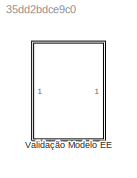
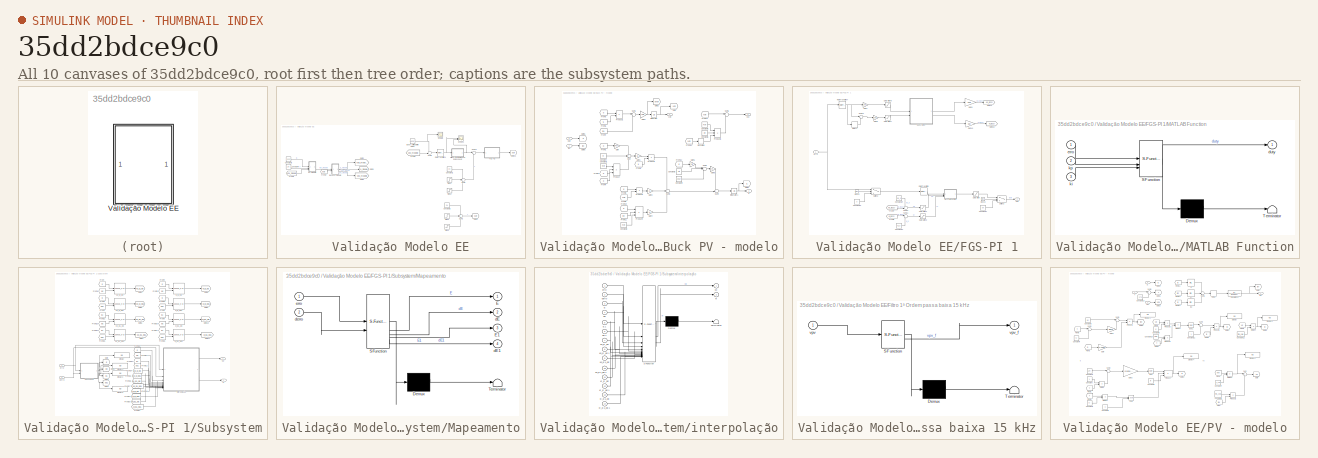
[diagram: thumbnail index - all 10 canvases of the model, root first then tree order]
MODEL slx_35dd2bdce9c0
KIND model
CONFIG AbsTol = auto
CONFIG EnableMultiTasking = off
CONFIG FixedStep = 1/150000
CONFIG MaxStep = auto
CONFIG MinStep = auto
CONFIG RelTol = 1e-3
CONFIG SampleTimeConstraint = Unconstrained
CONFIG SolverName = FixedStepAuto
CONFIG StartTime = 0.0
CONFIG StopTime = 0.3
BLOCK [SubSystem] Validação Modelo EE
BLOCK [Reference] Validação Modelo EE/Band-Limited White Noise  REF=simulink/Sources/Band-Limited
White Noise
  Commented = on
  SourceBlock = simulink/Sources/Band-Limited\nWhite Noise
  SourceType = Band-Limited White Noise.
BLOCK [SubSystem] Validação Modelo EE/Buck PV - modelo
BLOCK [Constant] Validação Modelo EE/Buck PV - modelo/Constant
  Value = Rl
BLOCK [Constant] Validação Modelo EE/Buck PV - modelo/Constant1
  Value = Rcin
BLOCK [Constant] Validação Modelo EE/Buck PV - modelo/Constant2
  Value = Rcin
BLOCK [Constant] Validação Modelo EE/Buck PV - modelo/Constant3
  Value = Vto
BLOCK [Constant] Validação Modelo EE/Buck PV - modelo/Constant4
  Value = Vbat
BLOCK [Constant] Validação Modelo EE/Buck PV - modelo/Constant5
  Value = Rcin
BLOCK [Constant] Validação Modelo EE/Buck PV - modelo/Constant6
  Value = Cin
BLOCK [Derivative] Validação Modelo EE/Buck PV - modelo/Derivative
BLOCK [From] Validação Modelo EE/Buck PV - modelo/From1
  GotoTag = d
BLOCK [From] Validação Modelo EE/Buck PV - modelo/From10
  GotoTag = d
BLOCK [From] Validação Modelo EE/Buck PV - modelo/From11
  GotoTag = ipv
BLOCK [From] Validação Modelo EE/Buck PV - modelo/From12
  GotoTag = d
BLOCK [From] Validação Modelo EE/Buck PV - modelo/From13
  GotoTag = vcin
BLOCK [From] Validação Modelo EE/Buck PV - modelo/From14
  GotoTag = vcin
BLOCK [From] Validação Modelo EE/Buck PV - modelo/From2
  GotoTag = d
BLOCK [From] Validação Modelo EE/Buck PV - modelo/From3
  GotoTag = d
BLOCK [From] Validação Modelo EE/Buck PV - modelo/From4
  GotoTag = d
BLOCK [From] Validação Modelo EE/Buck PV - modelo/From5
  GotoTag = iL
BLOCK [From] Validação Modelo EE/Buck PV - modelo/From6
  GotoTag = iL
BLOCK [From] Validação Modelo EE/Buck PV - modelo/From7
  GotoTag = ipv
BLOCK [From] Validação Modelo EE/Buck PV - modelo/From8
  GotoTag = d
BLOCK [From] Validação Modelo EE/Buck PV - modelo/From9
  GotoTag = vcin
BLOCK [Gain] Validação Modelo EE/Buck PV - modelo/Gain
  Gain = Ron
BLOCK [Gain] Validação Modelo EE/Buck PV - modelo/Gain1
  Gain = -1/L
BLOCK [Gain] Validação Modelo EE/Buck PV - modelo/Gain2
  Gain = 1/Cin
BLOCK [Gain] Validação Modelo EE/Buck PV - modelo/Gain3
  Gain = 1/L
BLOCK [Gain] Validação Modelo EE/Buck PV - modelo/Gain4
  Gain = 1/L
BLOCK [Gain] Validação Modelo EE/Buck PV - modelo/Gain5
  Gain = Vto
BLOCK [Gain] Validação Modelo EE/Buck PV - modelo/Gain6
  Gain = 1/L
BLOCK [Goto] Validação Modelo EE/Buck PV - modelo/Goto
  GotoTag = vcin
BLOCK [Goto] Validação Modelo EE/Buck PV - modelo/Goto1
  GotoTag = iL
BLOCK [Goto] Validação Modelo EE/Buck PV - modelo/Goto2
  GotoTag = dvcin
BLOCK [Goto] Validação Modelo EE/Buck PV - modelo/Goto5
  GotoTag = d
BLOCK [Goto] Validação Modelo EE/Buck PV - modelo/Goto8
  GotoTag = ipv
BLOCK [Integrator] Validação Modelo EE/Buck PV - modelo/Integrator
BLOCK [Integrator] Validação Modelo EE/Buck PV - modelo/Integrator1
BLOCK [Product] Validação Modelo EE/Buck PV - modelo/Product
  Inputs = 3
BLOCK [Product] Validação Modelo EE/Buck PV - modelo/Product1
BLOCK [Product] Validação Modelo EE/Buck PV - modelo/Product2
BLOCK [Product] Validação Modelo EE/Buck PV - modelo/Product3
BLOCK [Product] Validação Modelo EE/Buck PV - modelo/Product4
  Inputs = 3
BLOCK [Product] Validação Modelo EE/Buck PV - modelo/Product5
  Inputs = 3
BLOCK [Sum] Validação Modelo EE/Buck PV - modelo/Sum
  Inputs = ++-
BLOCK [Sum] Validação Modelo EE/Buck PV - modelo/Sum1
  Inputs = |-+
BLOCK [Sum] Validação Modelo EE/Buck PV - modelo/Sum2
  Inputs = +--
BLOCK [Sum] Validação Modelo EE/Buck PV - modelo/Sum3
  Inputs = +++
BLOCK [Sum] Validação Modelo EE/Buck PV - modelo/Sum4
  Inputs = ++|
BLOCK [Sum] Validação Modelo EE/Buck PV - modelo/Sum5
  Inputs = |++
BLOCK [Inport] Validação Modelo EE/Buck PV - modelo/duty
  Port = 2
BLOCK [Outport] Validação Modelo EE/Buck PV - modelo/iL
  Port = 2
BLOCK [Inport] Validação Modelo EE/Buck PV - modelo/ipv
BLOCK [Outport] Validação Modelo EE/Buck PV - modelo/vcin
BLOCK [Outport] Validação Modelo EE/Buck PV - modelo/vpv
  Port = 3
BLOCK [Constant] Validação Modelo EE/Constant1
  Commented = on
  Value = 23
BLOCK [Constant] Validação Modelo EE/Constant2
  Value = 0.4
BLOCK [Constant] Validação Modelo EE/Constant3
  Value = 1000
BLOCK [Constant] Validação Modelo EE/Constant4
  Value = 25
BLOCK [SubSystem] Validação Modelo EE/FGS-PI 1
  Commented = on
BLOCK [Clock] Validação Modelo EE/FGS-PI 1/Clock2
BLOCK [Clock] Validação Modelo EE/FGS-PI 1/Clock3
BLOCK [Constant] Validação Modelo EE/FGS-PI 1/Constant10
  Value = 0
BLOCK [Constant] Validação Modelo EE/FGS-PI 1/Constant11
  Value = 0.4
BLOCK [Constant] Validação Modelo EE/FGS-PI 1/Constant13
  Value = ki_0
BLOCK [Constant] Validação Modelo EE/FGS-PI 1/Constant14
  Value = kp_0
BLOCK [Delay] Validação Modelo EE/FGS-PI 1/Delay1
  DelayLength = 1
  InputPortMap = u0
BLOCK [From] Validação Modelo EE/FGS-PI 1/From7
  GotoTag = kp_fuzzy
BLOCK [From] Validação Modelo EE/FGS-PI 1/From8
  GotoTag = ki_fuzzy
BLOCK [Gain] Validação Modelo EE/FGS-PI 1/Gain10
  Gain = kki
BLOCK [Gain] Validação Modelo EE/FGS-PI 1/Gain7
  Gain = kE
BLOCK [Gain] Validação Modelo EE/FGS-PI 1/Gain8
  Gain = kdE
BLOCK [Gain] Validação Modelo EE/FGS-PI 1/Gain9
  Gain = kkp
BLOCK [Goto] Validação Modelo EE/FGS-PI 1/Goto13
  GotoTag = kp_fuzzy
BLOCK [Goto] Validação Modelo EE/FGS-PI 1/Goto15
  GotoTag = ki_fuzzy
BLOCK [SubSystem] Validação Modelo EE/FGS-PI 1/MATLAB Function
  ErrorFcn = Stateflow.Translate.translate
  PermitHierarchicalResolution = ExplicitOnly
  SFBlockType = MATLAB Function
  TreatAsAtomicUnit = on
BLOCK [Demux] Validação Modelo EE/FGS-PI 1/MATLAB Function/ Demux 
  Outputs = 1
BLOCK [S-Function] Validação Modelo EE/FGS-PI 1/MATLAB Function/ SFunction 
  EnableBusSupport = on
  FunctionName = sf_sfun
  PortCounts = [3 2]
  SFcnIsStateOwnerBlock = off
  SFunctionDeploymentMode = off
  Tag = Stateflow S-Function 16
BLOCK [Terminator] Validação Modelo EE/FGS-PI 1/MATLAB Function/ Terminator 
BLOCK [Outport] Validação Modelo EE/FGS-PI 1/MATLAB Function/duty
BLOCK [Inport] Validação Modelo EE/FGS-PI 1/MATLAB Function/erro
BLOCK [Inport] Validação Modelo EE/FGS-PI 1/MATLAB Function/ki
  Port = 3
BLOCK [Inport] Validação Modelo EE/FGS-PI 1/MATLAB Function/kp
  Port = 2
BLOCK [RateTransition] Validação Modelo EE/FGS-PI 1/Rate Transition
  OutPortSampleTime = 1/150000
BLOCK [RateTransition] Validação Modelo EE/FGS-PI 1/Rate Transition7
  OutPortSampleTime = 200e-6
BLOCK [Saturate] Validação Modelo EE/FGS-PI 1/Saturation
  LowerLimit = 0
  UpperLimit = 1
BLOCK [Saturate] Validação Modelo EE/FGS-PI 1/Saturation1
  LowerLimit = 0
  UpperLimit = 10
BLOCK [Saturate] Validação Modelo EE/FGS-PI 1/Saturation2
  LowerLimit = 0
  UpperLimit = 10
BLOCK [Saturate] Validação Modelo EE/FGS-PI 1/Saturation7
  LowerLimit = -1
  UpperLimit = 1
BLOCK [Saturate] Validação Modelo EE/FGS-PI 1/Saturation8
  LowerLimit = -1
  UpperLimit = 1
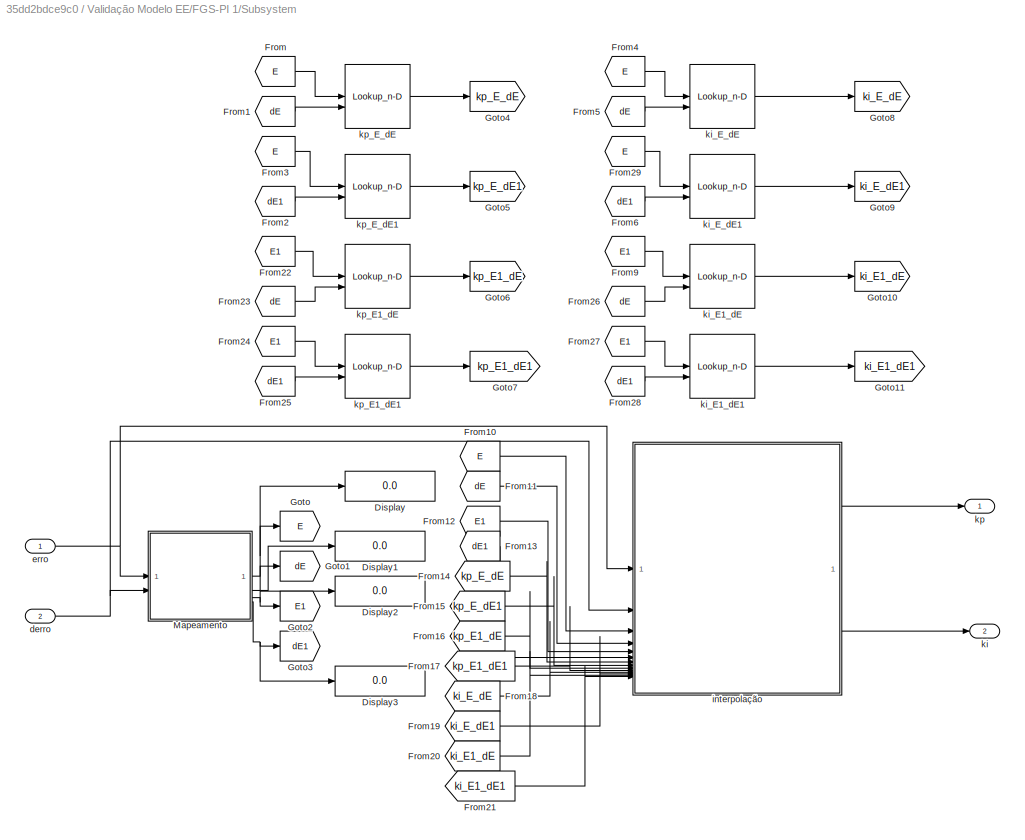
BLOCK [SubSystem] Validação Modelo EE/FGS-PI 1/Subsystem
BLOCK [Display] Validação Modelo EE/FGS-PI 1/Subsystem/Display
  Decimation = 1
BLOCK [Display] Validação Modelo EE/FGS-PI 1/Subsystem/Display1
  Decimation = 1
BLOCK [Display] Validação Modelo EE/FGS-PI 1/Subsystem/Display2
  Decimation = 1
BLOCK [Display] Validação Modelo EE/FGS-PI 1/Subsystem/Display3
  Decimation = 1
BLOCK [From] Validação Modelo EE/FGS-PI 1/Subsystem/From
  GotoTag = E
BLOCK [From] Validação Modelo EE/FGS-PI 1/Subsystem/From1
  GotoTag = dE
BLOCK [From] Validação Modelo EE/FGS-PI 1/Subsystem/From10
  GotoTag = E
BLOCK [From] Validação Modelo EE/FGS-PI 1/Subsystem/From11
  GotoTag = dE
BLOCK [From] Validação Modelo EE/FGS-PI 1/Subsystem/From12
  GotoTag = E1
BLOCK [From] Validação Modelo EE/FGS-PI 1/Subsystem/From13
  GotoTag = dE1
BLOCK [From] Validação Modelo EE/FGS-PI 1/Subsystem/From14
  GotoTag = kp_E_dE
BLOCK [From] Validação Modelo EE/FGS-PI 1/Subsystem/From15
  GotoTag = kp_E_dE1
BLOCK [From] Validação Modelo EE/FGS-PI 1/Subsystem/From16
  GotoTag = kp_E1_dE
BLOCK [From] Validação Modelo EE/FGS-PI 1/Subsystem/From17
  GotoTag = kp_E1_dE1
BLOCK [From] Validação Modelo EE/FGS-PI 1/Subsystem/From18
  GotoTag = ki_E_dE
BLOCK [From] Validação Modelo EE/FGS-PI 1/Subsystem/From19
  GotoTag = ki_E_dE1
BLOCK [From] Validação Modelo EE/FGS-PI 1/Subsystem/From2
  GotoTag = dE1
BLOCK [From] Validação Modelo EE/FGS-PI 1/Subsystem/From20
  GotoTag = ki_E1_dE
BLOCK [From] Validação Modelo EE/FGS-PI 1/Subsystem/From21
  GotoTag = ki_E1_dE1
BLOCK [From] Validação Modelo EE/FGS-PI 1/Subsystem/From22
  GotoTag = E1
BLOCK [From] Validação Modelo EE/FGS-PI 1/Subsystem/From23
  GotoTag = dE
BLOCK [From] Validação Modelo EE/FGS-PI 1/Subsystem/From24
  GotoTag = E1
BLOCK [From] Validação Modelo EE/FGS-PI 1/Subsystem/From25
  GotoTag = dE1
BLOCK [From] Validação Modelo EE/FGS-PI 1/Subsystem/From26
  GotoTag = dE
BLOCK [From] Validação Modelo EE/FGS-PI 1/Subsystem/From27
  GotoTag = E1
BLOCK [From] Validação Modelo EE/FGS-PI 1/Subsystem/From28
  GotoTag = dE1
BLOCK [From] Validação Modelo EE/FGS-PI 1/Subsystem/From29
  GotoTag = E
BLOCK [From] Validação Modelo EE/FGS-PI 1/Subsystem/From3
  GotoTag = E
BLOCK [From] Validação Modelo EE/FGS-PI 1/Subsystem/From4
  GotoTag = E
BLOCK [From] Validação Modelo EE/FGS-PI 1/Subsystem/From5
  GotoTag = dE
BLOCK [From] Validação Modelo EE/FGS-PI 1/Subsystem/From6
  GotoTag = dE1
BLOCK [From] Validação Modelo EE/FGS-PI 1/Subsystem/From9
  GotoTag = E1
BLOCK [Goto] Validação Modelo EE/FGS-PI 1/Subsystem/Goto
  GotoTag = E
BLOCK [Goto] Validação Modelo EE/FGS-PI 1/Subsystem/Goto1
  GotoTag = dE
BLOCK [Goto] Validação Modelo EE/FGS-PI 1/Subsystem/Goto10
  GotoTag = ki_E1_dE
BLOCK [Goto] Validação Modelo EE/FGS-PI 1/Subsystem/Goto11
  GotoTag = ki_E1_dE1
BLOCK [Goto] Validação Modelo EE/FGS-PI 1/Subsystem/Goto2
  GotoTag = E1
BLOCK [Goto] Validação Modelo EE/FGS-PI 1/Subsystem/Goto3
  GotoTag = dE1
BLOCK [Goto] Validação Modelo EE/FGS-PI 1/Subsystem/Goto4
  GotoTag = kp_E_dE
BLOCK [Goto] Validação Modelo EE/FGS-PI 1/Subsystem/Goto5
  GotoTag = kp_E_dE1
BLOCK [Goto] Validação Modelo EE/FGS-PI 1/Subsystem/Goto6
  GotoTag = kp_E1_dE
BLOCK [Goto] Validação Modelo EE/FGS-PI 1/Subsystem/Goto7
  GotoTag = kp_E1_dE1
BLOCK [Goto] Validação Modelo EE/FGS-PI 1/Subsystem/Goto8
  GotoTag = ki_E_dE
BLOCK [Goto] Validação Modelo EE/FGS-PI 1/Subsystem/Goto9
  GotoTag = ki_E_dE1
BLOCK [SubSystem] Validação Modelo EE/FGS-PI 1/Subsystem/Mapeamento
  ErrorFcn = Stateflow.Translate.translate
  PermitHierarchicalResolution = ExplicitOnly
  SFBlockType = MATLAB Function
  TreatAsAtomicUnit = on
BLOCK [Demux] Validação Modelo EE/FGS-PI 1/Subsystem/Mapeamento/ Demux 
  Outputs = 1
BLOCK [S-Function] Validação Modelo EE/FGS-PI 1/Subsystem/Mapeamento/ SFunction 
  EnableBusSupport = on
  FunctionName = sf_sfun
  PortCounts = [2 5]
  SFcnIsStateOwnerBlock = off
  SFunctionDeploymentMode = off
  Tag = Stateflow S-Function 1
BLOCK [Terminator] Validação Modelo EE/FGS-PI 1/Subsystem/Mapeamento/ Terminator 
BLOCK [Outport] Validação Modelo EE/FGS-PI 1/Subsystem/Mapeamento/E
BLOCK [Outport] Validação Modelo EE/FGS-PI 1/Subsystem/Mapeamento/E1
  Port = 3
BLOCK [Outport] Validação Modelo EE/FGS-PI 1/Subsystem/Mapeamento/dE
  Port = 2
BLOCK [Outport] Validação Modelo EE/FGS-PI 1/Subsystem/Mapeamento/dE1
  Port = 4
BLOCK [Inport] Validação Modelo EE/FGS-PI 1/Subsystem/Mapeamento/derro
  Port = 2
BLOCK [Inport] Validação Modelo EE/FGS-PI 1/Subsystem/Mapeamento/erro
BLOCK [Inport] Validação Modelo EE/FGS-PI 1/Subsystem/derro
  Port = 2
BLOCK [Inport] Validação Modelo EE/FGS-PI 1/Subsystem/erro
BLOCK [SubSystem] Validação Modelo EE/FGS-PI 1/Subsystem/interpolação
  ErrorFcn = Stateflow.Translate.translate
  PermitHierarchicalResolution = ExplicitOnly
  SFBlockType = MATLAB Function
  TreatAsAtomicUnit = on
BLOCK [Demux] Validação Modelo EE/FGS-PI 1/Subsystem/interpolação/ Demux 
  Outputs = 1
BLOCK [S-Function] Validação Modelo EE/FGS-PI 1/Subsystem/interpolação/ SFunction 
  EnableBusSupport = on
  FunctionName = sf_sfun
  PortCounts = [14 3]
  SFcnIsStateOwnerBlock = off
  SFunctionDeploymentMode = off
  Tag = Stateflow S-Function 2
BLOCK [Terminator] Validação Modelo EE/FGS-PI 1/Subsystem/interpolação/ Terminator 
BLOCK [Inport] Validação Modelo EE/FGS-PI 1/Subsystem/interpolação/E
  Port = 3
BLOCK [Inport] Validação Modelo EE/FGS-PI 1/Subsystem/interpolação/E1
  Port = 5
BLOCK [Inport] Validação Modelo EE/FGS-PI 1/Subsystem/interpolação/dE
  Port = 4
BLOCK [Inport] Validação Modelo EE/FGS-PI 1/Subsystem/interpolação/dE1
  Port = 6
BLOCK [Inport] Validação Modelo EE/FGS-PI 1/Subsystem/interpolação/derro
  Port = 2
BLOCK [Inport] Validação Modelo EE/FGS-PI 1/Subsystem/interpolação/erro
BLOCK [Outport] Validação Modelo EE/FGS-PI 1/Subsystem/interpolação/ki
  Port = 2
BLOCK [Inport] Validação Modelo EE/FGS-PI 1/Subsystem/interpolação/ki_E1_dE
  Port = 13
BLOCK [Inport] Validação Modelo EE/FGS-PI 1/Subsystem/interpolação/ki_E1_dE1
  Port = 14
BLOCK [Inport] Validação Modelo EE/FGS-PI 1/Subsystem/interpolação/ki_E_dE
  Port = 11
BLOCK [Inport] Validação Modelo EE/FGS-PI 1/Subsystem/interpolação/ki_E_dE1
  Port = 12
BLOCK [Outport] Validação Modelo EE/FGS-PI 1/Subsystem/interpolação/kp
BLOCK [Inport] Validação Modelo EE/FGS-PI 1/Subsystem/interpolação/kp_E1_dE
  Port = 9
BLOCK [Inport] Validação Modelo EE/FGS-PI 1/Subsystem/interpolação/kp_E1_dE1
  Port = 10
BLOCK [Inport] Validação Modelo EE/FGS-PI 1/Subsystem/interpolação/kp_E_dE
  Port = 7
BLOCK [Inport] Validação Modelo EE/FGS-PI 1/Subsystem/interpolação/kp_E_dE1
  Port = 8
BLOCK [Outport] Validação Modelo EE/FGS-PI 1/Subsystem/ki
  Port = 2
BLOCK [Lookup_n-D] Validação Modelo EE/FGS-PI 1/Subsystem/ki_E1_dE
  BreakpointsForDimension1 = [1:n_pontos]
  BreakpointsForDimension1FirstPoint = 10
  BreakpointsForDimension1Spacing = 12
  BreakpointsForDimension2 = [1:n_pontos]
  BreakpointsForDimension2FirstPoint = 10
  BreakpointsForDimension2Spacing = 12
  DiagnosticForOutOfRangeInput = Error
  IndexSearchMethod = Evenly spaced points
  InputPortMap = u0,u1
  InternalRulePriority = Speed
  InterpMethod = Flat
  LookupTableObject = ''
  RndMeth = Simplest
  Table = ki
BLOCK [Lookup_n-D] Validação Modelo EE/FGS-PI 1/Subsystem/ki_E1_dE1
  BreakpointsForDimension1 = [1:n_pontos]
  BreakpointsForDimension1FirstPoint = 10
  BreakpointsForDimension1Spacing = 12
  BreakpointsForDimension2 = [1:n_pontos]
  BreakpointsForDimension2FirstPoint = 10
  BreakpointsForDimension2Spacing = 12
  DiagnosticForOutOfRangeInput = Error
  IndexSearchMethod = Evenly spaced points
  InputPortMap = u0,u1
  InternalRulePriority = Speed
  InterpMethod = Flat
  LookupTableObject = ''
  RndMeth = Simplest
  Table = ki
BLOCK [Lookup_n-D] Validação Modelo EE/FGS-PI 1/Subsystem/ki_E_dE
  BreakpointsForDimension1 = [1:n_pontos]
  BreakpointsForDimension1FirstPoint = 10
  BreakpointsForDimension1Spacing = 12
  BreakpointsForDimension2 = [1:n_pontos]
  BreakpointsForDimension2FirstPoint = 10
  BreakpointsForDimension2Spacing = 12
  DiagnosticForOutOfRangeInput = Error
  IndexSearchMethod = Evenly spaced points
  InputPortMap = u0,u1
  InternalRulePriority = Speed
  InterpMethod = Flat
  LookupTableObject = ''
  RndMeth = Simplest
  Table = ki
BLOCK [Lookup_n-D] Validação Modelo EE/FGS-PI 1/Subsystem/ki_E_dE1
  BreakpointsForDimension1 = [1:n_pontos]
  BreakpointsForDimension1FirstPoint = 10
  BreakpointsForDimension1Spacing = 12
  BreakpointsForDimension2 = [1:n_pontos]
  BreakpointsForDimension2FirstPoint = 10
  BreakpointsForDimension2Spacing = 12
  DiagnosticForOutOfRangeInput = Error
  IndexSearchMethod = Evenly spaced points
  InputPortMap = u0,u1
  InternalRulePriority = Speed
  InterpMethod = Flat
  LookupTableObject = ''
  RndMeth = Simplest
  Table = ki
BLOCK [Outport] Validação Modelo EE/FGS-PI 1/Subsystem/kp
BLOCK [Lookup_n-D] Validação Modelo EE/FGS-PI 1/Subsystem/kp_E1_dE
  BreakpointsForDimension1 = [1:n_pontos]
  BreakpointsForDimension1FirstPoint = 10
  BreakpointsForDimension1Spacing = 12
  BreakpointsForDimension2 = [1:n_pontos]
  BreakpointsForDimension2FirstPoint = 10
  BreakpointsForDimension2Spacing = 12
  DiagnosticForOutOfRangeInput = Error
  IndexSearchMethod = Evenly spaced points
  InputPortMap = u0,u1
  InternalRulePriority = Speed
  InterpMethod = Flat
  LookupTableObject = ''
  RndMeth = Simplest
  Table = kp
BLOCK [Lookup_n-D] Validação Modelo EE/FGS-PI 1/Subsystem/kp_E1_dE1
  BreakpointsForDimension1 = [1:n_pontos]
  BreakpointsForDimension1FirstPoint = 10
  BreakpointsForDimension1Spacing = 12
  BreakpointsForDimension2 = [1:n_pontos]
  BreakpointsForDimension2FirstPoint = 10
  BreakpointsForDimension2Spacing = 12
  DiagnosticForOutOfRangeInput = Error
  IndexSearchMethod = Evenly spaced points
  InputPortMap = u0,u1
  InternalRulePriority = Speed
  InterpMethod = Flat
  LookupTableObject = ''
  RndMeth = Simplest
  Table = kp
BLOCK [Lookup_n-D] Validação Modelo EE/FGS-PI 1/Subsystem/kp_E_dE
  BreakpointsForDimension1 = [1:n_pontos]
  BreakpointsForDimension1FirstPoint = 10
  BreakpointsForDimension1Spacing = 12
  BreakpointsForDimension2 = [1:n_pontos]
  BreakpointsForDimension2FirstPoint = 10
  BreakpointsForDimension2Spacing = 12
  DiagnosticForOutOfRangeInput = Error
  IndexSearchMethod = Evenly spaced points
  InputPortMap = u0,u1
  InternalRulePriority = Speed
  InterpMethod = Flat
  LookupTableObject = ''
  RndMeth = Simplest
  Table = kp
BLOCK [Lookup_n-D] Validação Modelo EE/FGS-PI 1/Subsystem/kp_E_dE1
  BreakpointsForDimension1 = [1:n_pontos]
  BreakpointsForDimension1FirstPoint = 10
  BreakpointsForDimension1Spacing = 12
  BreakpointsForDimension2 = [1:n_pontos]
  BreakpointsForDimension2FirstPoint = 10
  BreakpointsForDimension2Spacing = 12
  DiagnosticForOutOfRangeInput = Error
  IndexSearchMethod = Evenly spaced points
  InputPortMap = u0,u1
  InternalRulePriority = Speed
  InterpMethod = Flat
  LookupTableObject = ''
  RndMeth = Simplest
  Table = kp
BLOCK [Sum] Validação Modelo EE/FGS-PI 1/Sum11
  Inputs = |++
BLOCK [Sum] Validação Modelo EE/FGS-PI 1/Sum12
  Inputs = ++|
BLOCK [Sum] Validação Modelo EE/FGS-PI 1/Sum13
  Inputs = |+-
BLOCK [Switch] Validação Modelo EE/FGS-PI 1/Switch2
  Criteria = u2 > Threshold
  InputSameDT = off
  SaturateOnIntegerOverflow = off
  Threshold = 0.01
BLOCK [Switch] Validação Modelo EE/FGS-PI 1/Switch3
  Criteria = u2 > Threshold
  InputSameDT = off
  SaturateOnIntegerOverflow = off
  Threshold = 0.01
BLOCK [Outport] Validação Modelo EE/FGS-PI 1/duty
BLOCK [Inport] Validação Modelo EE/FGS-PI 1/erro
BLOCK [SubSystem] Validação Modelo EE/Filtro 1ª Ordem passa baixa 15 kHz
  Commented = on
  ErrorFcn = Stateflow.Translate.translate
  PermitHierarchicalResolution = ExplicitOnly
  SFBlockType = MATLAB Function
  TreatAsAtomicUnit = on
BLOCK [Demux] Validação Modelo EE/Filtro 1ª Ordem passa baixa 15 kHz/ Demux 
  Outputs = 1
BLOCK [S-Function] Validação Modelo EE/Filtro 1ª Ordem passa baixa 15 kHz/ SFunction 
  EnableBusSupport = on
  FunctionName = sf_sfun
  PortCounts = [1 2]
  SFcnIsStateOwnerBlock = off
  SFunctionDeploymentMode = off
  Tag = Stateflow S-Function 3
BLOCK [Terminator] Validação Modelo EE/Filtro 1ª Ordem passa baixa 15 kHz/ Terminator 
BLOCK [Inport] Validação Modelo EE/Filtro 1ª Ordem passa baixa 15 kHz/vpv
BLOCK [Outport] Validação Modelo EE/Filtro 1ª Ordem passa baixa 15 kHz/vpv_f
BLOCK [From] Validação Modelo EE/From3
  GotoTag = duty
BLOCK [From] Validação Modelo EE/From4
  Commented = on
  GotoTag = vpv_modelo
BLOCK [From] Validação Modelo EE/From6
  GotoTag = vpv_modelo
BLOCK [Goto] Validação Modelo EE/Goto1
  GotoTag = duty
BLOCK [Goto] Validação Modelo EE/Goto11
  Commented = on
  GotoTag = duty
BLOCK [Goto] Validação Modelo EE/Goto2
  GotoTag = vcin_modelo
BLOCK [Goto] Validação Modelo EE/Goto5
  GotoTag = iL_modelo
BLOCK [Goto] Validação Modelo EE/Goto9
  GotoTag = vpv_modelo
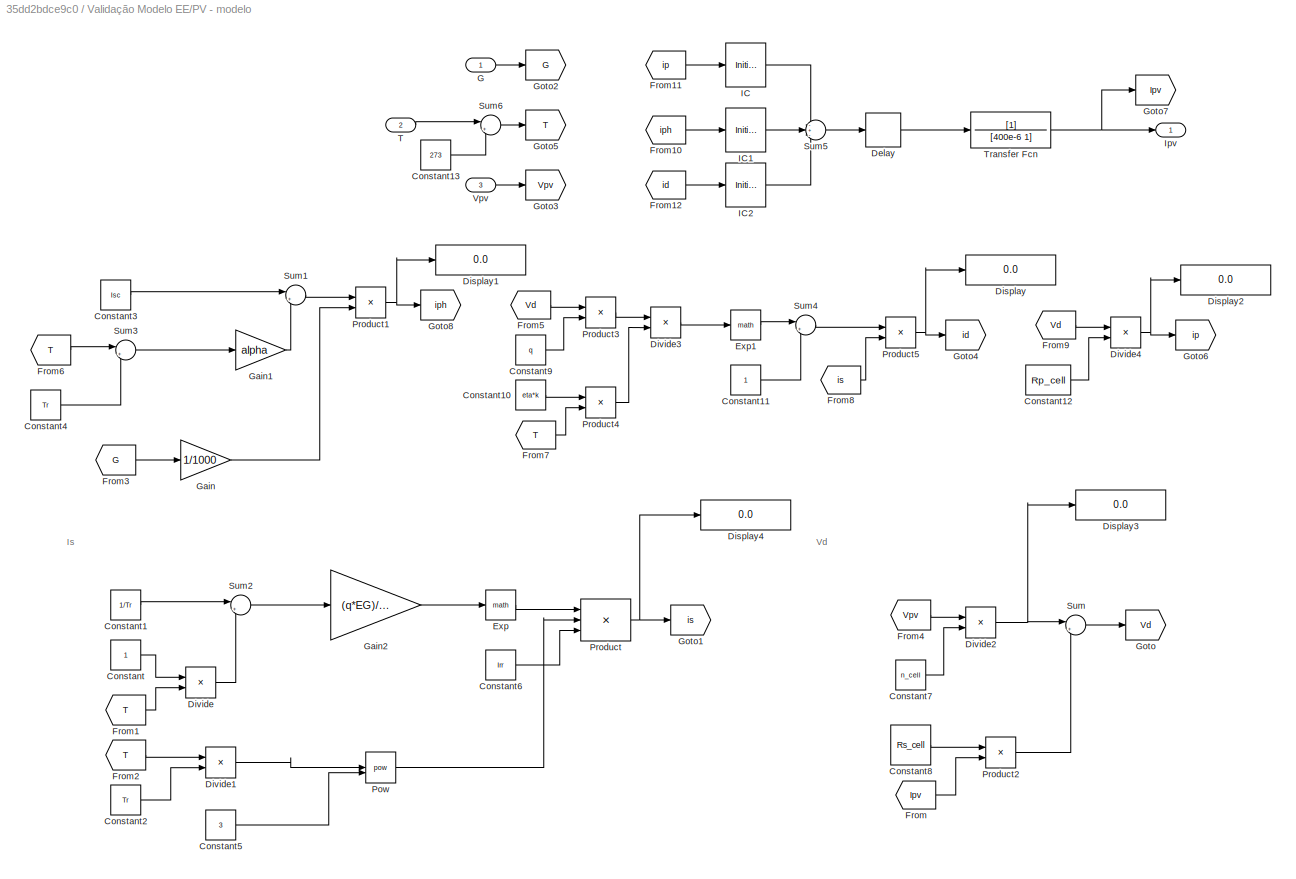
BLOCK [SubSystem] Validação Modelo EE/PV - modelo
BLOCK [Constant] Validação Modelo EE/PV - modelo/Constant
BLOCK [Constant] Validação Modelo EE/PV - modelo/Constant1
  Value = 1/Tr
BLOCK [Constant] Validação Modelo EE/PV - modelo/Constant10
  Value = eta*k
BLOCK [Constant] Validação Modelo EE/PV - modelo/Constant11
BLOCK [Constant] Validação Modelo EE/PV - modelo/Constant12
  Value = Rp_cell
BLOCK [Constant] Validação Modelo EE/PV - modelo/Constant13
  Value = 273
BLOCK [Constant] Validação Modelo EE/PV - modelo/Constant2
  Value = Tr
BLOCK [Constant] Validação Modelo EE/PV - modelo/Constant3
  Value = Isc
BLOCK [Constant] Validação Modelo EE/PV - modelo/Constant4
  Value = Tr
BLOCK [Constant] Validação Modelo EE/PV - modelo/Constant5
  Value = 3
BLOCK [Constant] Validação Modelo EE/PV - modelo/Constant6
  Value = Irr
BLOCK [Constant] Validação Modelo EE/PV - modelo/Constant7
  Value = n_cell
BLOCK [Constant] Validação Modelo EE/PV - modelo/Constant8
  Value = Rs_cell
BLOCK [Constant] Validação Modelo EE/PV - modelo/Constant9
  Value = q
BLOCK [Delay] Validação Modelo EE/PV - modelo/Delay
  Commented = through
  DelayLength = 1
  InputPortMap = u0
BLOCK [Display] Validação Modelo EE/PV - modelo/Display
  Decimation = 1
BLOCK [Display] Validação Modelo EE/PV - modelo/Display1
  Decimation = 1
BLOCK [Display] Validação Modelo EE/PV - modelo/Display2
  Decimation = 1
BLOCK [Display] Validação Modelo EE/PV - modelo/Display3
  Decimation = 1
BLOCK [Display] Validação Modelo EE/PV - modelo/Display4
  Decimation = 1
BLOCK [Product] Validação Modelo EE/PV - modelo/Divide
  Inputs = */
BLOCK [Product] Validação Modelo EE/PV - modelo/Divide1
  Inputs = */
BLOCK [Product] Validação Modelo EE/PV - modelo/Divide2
  Inputs = */
BLOCK [Product] Validação Modelo EE/PV - modelo/Divide3
  Inputs = */
BLOCK [Product] Validação Modelo EE/PV - modelo/Divide4
  Inputs = */
BLOCK [Math] Validação Modelo EE/PV - modelo/Exp
BLOCK [Math] Validação Modelo EE/PV - modelo/Exp1
BLOCK [From] Validação Modelo EE/PV - modelo/From
  GotoTag = Ipv
BLOCK [From] Validação Modelo EE/PV - modelo/From1
  GotoTag = T
BLOCK [From] Validação Modelo EE/PV - modelo/From10
  GotoTag = iph
BLOCK [From] Validação Modelo EE/PV - modelo/From11
  GotoTag = ip
BLOCK [From] Validação Modelo EE/PV - modelo/From12
  GotoTag = id
BLOCK [From] Validação Modelo EE/PV - modelo/From2
  GotoTag = T
BLOCK [From] Validação Modelo EE/PV - modelo/From3
  GotoTag = G
BLOCK [From] Validação Modelo EE/PV - modelo/From4
  GotoTag = Vpv
BLOCK [From] Validação Modelo EE/PV - modelo/From5
  GotoTag = Vd
BLOCK [From] Validação Modelo EE/PV - modelo/From6
  GotoTag = T
BLOCK [From] Validação Modelo EE/PV - modelo/From7
  GotoTag = T
BLOCK [From] Validação Modelo EE/PV - modelo/From8
  GotoTag = is
BLOCK [From] Validação Modelo EE/PV - modelo/From9
  GotoTag = Vd
BLOCK [Inport] Validação Modelo EE/PV - modelo/G
BLOCK [Gain] Validação Modelo EE/PV - modelo/Gain
  Gain = 1/1000
BLOCK [Gain] Validação Modelo EE/PV - modelo/Gain1
  Gain = alpha
BLOCK [Gain] Validação Modelo EE/PV - modelo/Gain2
  Gain = (q*EG)/(eta*k)
BLOCK [Goto] Validação Modelo EE/PV - modelo/Goto
  GotoTag = Vd
BLOCK [Goto] Validação Modelo EE/PV - modelo/Goto1
  GotoTag = is
BLOCK [Goto] Validação Modelo EE/PV - modelo/Goto2
  GotoTag = G
BLOCK [Goto] Validação Modelo EE/PV - modelo/Goto3
  GotoTag = Vpv
BLOCK [Goto] Validação Modelo EE/PV - modelo/Goto4
  GotoTag = id
BLOCK [Goto] Validação Modelo EE/PV - modelo/Goto5
  GotoTag = T
BLOCK [Goto] Validação Modelo EE/PV - modelo/Goto6
  GotoTag = ip
BLOCK [Goto] Validação Modelo EE/PV - modelo/Goto7
  GotoTag = Ipv
BLOCK [Goto] Validação Modelo EE/PV - modelo/Goto8
  GotoTag = iph
BLOCK [InitialCondition] Validação Modelo EE/PV - modelo/IC
  Value = 0
BLOCK [InitialCondition] Validação Modelo EE/PV - modelo/IC1
  Value = 0
BLOCK [InitialCondition] Validação Modelo EE/PV - modelo/IC2
  Value = 0
BLOCK [Outport] Validação Modelo EE/PV - modelo/Ipv
BLOCK [Math] Validação Modelo EE/PV - modelo/Pow
  Operator = pow
  RndMeth = Zero
  SignedPower = on
BLOCK [Product] Validação Modelo EE/PV - modelo/Product
  Inputs = 3
BLOCK [Product] Validação Modelo EE/PV - modelo/Product1
BLOCK [Product] Validação Modelo EE/PV - modelo/Product2
BLOCK [Product] Validação Modelo EE/PV - modelo/Product3
BLOCK [Product] Validação Modelo EE/PV - modelo/Product4
BLOCK [Product] Validação Modelo EE/PV - modelo/Product5
BLOCK [Sum] Validação Modelo EE/PV - modelo/Sum
  Inputs = |++
BLOCK [Sum] Validação Modelo EE/PV - modelo/Sum1
  Inputs = |++
BLOCK [Sum] Validação Modelo EE/PV - modelo/Sum2
  Inputs = |+-
BLOCK [Sum] Validação Modelo EE/PV - modelo/Sum3
  Inputs = |+-
BLOCK [Sum] Validação Modelo EE/PV - modelo/Sum4
  Inputs = |+-
BLOCK [Sum] Validação Modelo EE/PV - modelo/Sum5
  Inputs = -+-
BLOCK [Sum] Validação Modelo EE/PV - modelo/Sum6
  Inputs = |++
BLOCK [Inport] Validação Modelo EE/PV - modelo/T
  Port = 2
BLOCK [TransferFcn] Validação Modelo EE/PV - modelo/Transfer Fcn
  Denominator = [400e-6 1]
BLOCK [Inport] Validação Modelo EE/PV - modelo/Vpv
  Port = 3
BLOCK [RateTransition] Validação Modelo EE/Rate Transition1
  Commented = on
  OutPortSampleTime = 1/150000
BLOCK [Scope] Validação Modelo EE/Scope
  Commented = on
  Floating = off
  NumInputPorts = 1
  ScopeSpecificationString = Simulink.scopes.TimeScopeBlockCfg('CurrentConfiguration', extmgr.ConfigurationSet(extmgr.Configuration('Core','General UI',true),extmgr.Configuration('Core','Source UI',true),extmgr.Configuration('Sources','WiredSimulink',true,'DataLoggingVariableName','ScopeData1'),extmgr.Configuration('Visuals','Time Domain',true,'SerializedDisplays',{struct('MinYLimReal','-1.51665','MaxYLimReal','1.3686','YLabe...<+1471ch>
BLOCK [Scope] Validação Modelo EE/Scope1
  Commented = on
  Floating = off
  NumInputPorts = 2
  ScopeSpecificationString = Simulink.scopes.TimeScopeBlockCfg('CurrentConfiguration', extmgr.ConfigurationSet(extmgr.Configuration('Core','General UI',true),extmgr.Configuration('Core','Source UI',true),extmgr.Configuration('Sources','WiredSimulink',true,'DataLoggingVariableName','ScopeData2'),extmgr.Configuration('Visuals','Time Domain',true,'SerializedDisplays',{struct('MinYLimReal','22.92906','MaxYLimReal','25.5767','YLab...<+1577ch>
BLOCK [Step] Validação Modelo EE/Step1
  After = 3
  Commented = on
  SampleTime = 0
  Time = 0.1
BLOCK [Step] Validação Modelo EE/Step2
  After = -3
  Commented = on
  SampleTime = 0
  Time = 0.2
BLOCK [Step] Validação Modelo EE/Step3
  After = 0.01
  SampleTime = 0
  Time = 0.1
BLOCK [Step] Validação Modelo EE/Step4
  After = -0.01
  SampleTime = 0
  Time = 0.2
BLOCK [Sum] Validação Modelo EE/Sum1
  Commented = on
  Inputs = +++
BLOCK [Sum] Validação Modelo EE/Sum12
  Commented = on
  Inputs = |+-
BLOCK [Sum] Validação Modelo EE/Sum2
  Inputs = +++
BLOCK [Sum] Validação Modelo EE/Sum8
  Commented = on
  Inputs = ++|
ANNOTATION Validação Modelo EE/PV - modelo: Is
ANNOTATION Validação Modelo EE/PV - modelo: Vd
NET Validação Modelo EE/Band-Limited White Noise:1 -> Validação Modelo EE/Scope:1, Validação Modelo EE/Sum8:1
LINE Validação Modelo EE/Buck PV - modelo/Constant1:1 -> Validação Modelo EE/Buck PV - modelo/Product:1
LINE Validação Modelo EE/Buck PV - modelo/Constant2:1 -> Validação Modelo EE/Buck PV - modelo/Product4:3
LINE Validação Modelo EE/Buck PV - modelo/Constant3:1 -> Validação Modelo EE/Buck PV - modelo/Sum2:2
LINE Validação Modelo EE/Buck PV - modelo/Constant4:1 -> Validação Modelo EE/Buck PV - modelo/Sum2:3
LINE Validação Modelo EE/Buck PV - modelo/Constant5:1 -> Validação Modelo EE/Buck PV - modelo/Product5:1
LINE Validação Modelo EE/Buck PV - modelo/Constant6:1 -> Validação Modelo EE/Buck PV - modelo/Product5:2
LINE Validação Modelo EE/Buck PV - modelo/Constant:1 -> Validação Modelo EE/Buck PV - modelo/Sum:2
LINE Validação Modelo EE/Buck PV - modelo/Derivative:1 -> Validação Modelo EE/Buck PV - modelo/Product5:3
LINE Validação Modelo EE/Buck PV - modelo/From10:1 -> Validação Modelo EE/Buck PV - modelo/Product4:1
LINE Validação Modelo EE/Buck PV - modelo/From11:1 -> Validação Modelo EE/Buck PV - modelo/Product4:2
LINE Validação Modelo EE/Buck PV - modelo/From12:1 -> Validação Modelo EE/Buck PV - modelo/Gain5:1
LINE Validação Modelo EE/Buck PV - modelo/From13:1 -> Validação Modelo EE/Buck PV - modelo/Sum5:1
LINE Validação Modelo EE/Buck PV - modelo/From14:1 -> Validação Modelo EE/Buck PV - modelo/Derivative:1
LINE Validação Modelo EE/Buck PV - modelo/From1:1 -> Validação Modelo EE/Buck PV - modelo/Gain:1
LINE Validação Modelo EE/Buck PV - modelo/From2:1 -> Validação Modelo EE/Buck PV - modelo/Product:2
LINE Validação Modelo EE/Buck PV - modelo/From3:1 -> Validação Modelo EE/Buck PV - modelo/Product1:1
LINE Validação Modelo EE/Buck PV - modelo/From4:1 -> Validação Modelo EE/Buck PV - modelo/Product:3
LINE Validação Modelo EE/Buck PV - modelo/From5:1 -> Validação Modelo EE/Buck PV - modelo/Product2:2
LINE Validação Modelo EE/Buck PV - modelo/From6:1 -> Validação Modelo EE/Buck PV - modelo/Product1:2
LINE Validação Modelo EE/Buck PV - modelo/From7:1 -> Validação Modelo EE/Buck PV - modelo/Sum1:2
LINE Validação Modelo EE/Buck PV - modelo/From8:1 -> Validação Modelo EE/Buck PV - modelo/Product3:1
LINE Validação Modelo EE/Buck PV - modelo/From9:1 -> Validação Modelo EE/Buck PV - modelo/Product3:2
LINE Validação Modelo EE/Buck PV - modelo/Gain1:1 -> Validação Modelo EE/Buck PV - modelo/Product2:1
NET Validação Modelo EE/Buck PV - modelo/Gain2:1 -> Validação Modelo EE/Buck PV - modelo/Goto2:1, Validação Modelo EE/Buck PV - modelo/Integrator:1
LINE Validação Modelo EE/Buck PV - modelo/Gain3:1 -> Validação Modelo EE/Buck PV - modelo/Sum3:2
LINE Validação Modelo EE/Buck PV - modelo/Gain4:1 -> Validação Modelo EE/Buck PV - modelo/Sum3:3
LINE Validação Modelo EE/Buck PV - modelo/Gain5:1 -> Validação Modelo EE/Buck PV - modelo/Sum2:1
LINE Validação Modelo EE/Buck PV - modelo/Gain6:1 -> Validação Modelo EE/Buck PV - modelo/Sum4:1
LINE Validação Modelo EE/Buck PV - modelo/Gain:1 -> Validação Modelo EE/Buck PV - modelo/Sum:1
NET Validação Modelo EE/Buck PV - modelo/Integrator1:1 -> Validação Modelo EE/Buck PV - modelo/Goto1:1, Validação Modelo EE/Buck PV - modelo/iL:1
NET Validação Modelo EE/Buck PV - modelo/Integrator:1 -> Validação Modelo EE/Buck PV - modelo/Goto:1, Validação Modelo EE/Buck PV - modelo/vcin:1
LINE Validação Modelo EE/Buck PV - modelo/Product1:1 -> Validação Modelo EE/Buck PV - modelo/Sum1:1
LINE Validação Modelo EE/Buck PV - modelo/Product2:1 -> Validação Modelo EE/Buck PV - modelo/Sum3:1
LINE Validação Modelo EE/Buck PV - modelo/Product3:1 -> Validação Modelo EE/Buck PV - modelo/Gain3:1
LINE Validação Modelo EE/Buck PV - modelo/Product4:1 -> Validação Modelo EE/Buck PV - modelo/Gain4:1
LINE Validação Modelo EE/Buck PV - modelo/Product5:1 -> Validação Modelo EE/Buck PV - modelo/Sum5:2
LINE Validação Modelo EE/Buck PV - modelo/Product:1 -> Validação Modelo EE/Buck PV - modelo/Sum:3
LINE Validação Modelo EE/Buck PV - modelo/Sum1:1 -> Validação Modelo EE/Buck PV - modelo/Gain2:1
LINE Validação Modelo EE/Buck PV - modelo/Sum2:1 -> Validação Modelo EE/Buck PV - modelo/Gain6:1
LINE Validação Modelo EE/Buck PV - modelo/Sum3:1 -> Validação Modelo EE/Buck PV - modelo/Sum4:2
LINE Validação Modelo EE/Buck PV - modelo/Sum4:1 -> Validação Modelo EE/Buck PV - modelo/Integrator1:1
LINE Validação Modelo EE/Buck PV - modelo/Sum5:1 -> Validação Modelo EE/Buck PV - modelo/vpv:1
LINE Validação Modelo EE/Buck PV - modelo/Sum:1 -> Validação Modelo EE/Buck PV - modelo/Gain1:1
LINE Validação Modelo EE/Buck PV - modelo/duty:1 -> Validação Modelo EE/Buck PV - modelo/Goto5:1
LINE Validação Modelo EE/Buck PV - modelo/ipv:1 -> Validação Modelo EE/Buck PV - modelo/Goto8:1
LINE Validação Modelo EE/Buck PV - modelo:1 -> Validação Modelo EE/Goto2:1
LINE Validação Modelo EE/Buck PV - modelo:2 -> Validação Modelo EE/Goto5:1
LINE Validação Modelo EE/Buck PV - modelo:3 -> Validação Modelo EE/Goto9:1
LINE Validação Modelo EE/Constant1:1 -> Validação Modelo EE/Sum1:1
LINE Validação Modelo EE/Constant2:1 -> Validação Modelo EE/Sum2:1
LINE Validação Modelo EE/Constant3:1 -> Validação Modelo EE/PV - modelo:1
LINE Validação Modelo EE/Constant4:1 -> Validação Modelo EE/PV - modelo:2
LINE Validação Modelo EE/FGS-PI 1/Clock2:1 -> Validação Modelo EE/FGS-PI 1/Switch2:2
LINE Validação Modelo EE/FGS-PI 1/Clock3:1 -> Validação Modelo EE/FGS-PI 1/Switch3:2
LINE Validação Modelo EE/FGS-PI 1/Constant10:1 -> Validação Modelo EE/FGS-PI 1/Switch2:3
LINE Validação Modelo EE/FGS-PI 1/Constant11:1 -> Validação Modelo EE/FGS-PI 1/Switch3:3
LINE Validação Modelo EE/FGS-PI 1/Constant13:1 -> Validação Modelo EE/FGS-PI 1/Sum11:2
LINE Validação Modelo EE/FGS-PI 1/Constant14:1 -> Validação Modelo EE/FGS-PI 1/Sum12:1
LINE Validação Modelo EE/FGS-PI 1/Delay1:1 -> Validação Modelo EE/FGS-PI 1/Sum13:2
LINE Validação Modelo EE/FGS-PI 1/From7:1 -> Validação Modelo EE/FGS-PI 1/Sum12:2
LINE Validação Modelo EE/FGS-PI 1/From8:1 -> Validação Modelo EE/FGS-PI 1/Sum11:1
LINE Validação Modelo EE/FGS-PI 1/Gain10:1 -> Validação Modelo EE/FGS-PI 1/Goto15:1
LINE Validação Modelo EE/FGS-PI 1/Gain7:1 -> Validação Modelo EE/FGS-PI 1/Saturation8:1
LINE Validação Modelo EE/FGS-PI 1/Gain8:1 -> Validação Modelo EE/FGS-PI 1/Saturation7:1
LINE Validação Modelo EE/FGS-PI 1/Gain9:1 -> Validação Modelo EE/FGS-PI 1/Goto13:1
LINE Validação Modelo EE/FGS-PI 1/MATLAB Function:1 -> Validação Modelo EE/FGS-PI 1/Saturation:1
NET Validação Modelo EE/FGS-PI 1/Rate Transition7:1 -> Validação Modelo EE/FGS-PI 1/Delay1:1, Validação Modelo EE/FGS-PI 1/Gain7:1, Validação Modelo EE/FGS-PI 1/Sum13:1
LINE Validação Modelo EE/FGS-PI 1/Rate Transition:1 -> Validação Modelo EE/FGS-PI 1/MATLAB Function:1
LINE Validação Modelo EE/FGS-PI 1/Saturation1:1 -> Validação Modelo EE/FGS-PI 1/MATLAB Function:2
LINE Validação Modelo EE/FGS-PI 1/Saturation2:1 -> Validação Modelo EE/FGS-PI 1/MATLAB Function:3
LINE Validação Modelo EE/FGS-PI 1/Saturation7:1 -> Validação Modelo EE/FGS-PI 1/Subsystem:2
LINE Validação Modelo EE/FGS-PI 1/Saturation8:1 -> Validação Modelo EE/FGS-PI 1/Subsystem:1
LINE Validação Modelo EE/FGS-PI 1/Saturation:1 -> Validação Modelo EE/FGS-PI 1/Switch3:1
LINE Validação Modelo EE/FGS-PI 1/Subsystem/From10:1 -> Validação Modelo EE/FGS-PI 1/Subsystem/interpolação:3
LINE Validação Modelo EE/FGS-PI 1/Subsystem/From11:1 -> Validação Modelo EE/FGS-PI 1/Subsystem/interpolação:4
LINE Validação Modelo EE/FGS-PI 1/Subsystem/From12:1 -> Validação Modelo EE/FGS-PI 1/Subsystem/interpolação:5
LINE Validação Modelo EE/FGS-PI 1/Subsystem/From13:1 -> Validação Modelo EE/FGS-PI 1/Subsystem/interpolação:6
LINE Validação Modelo EE/FGS-PI 1/Subsystem/From14:1 -> Validação Modelo EE/FGS-PI 1/Subsystem/interpolação:7
LINE Validação Modelo EE/FGS-PI 1/Subsystem/From15:1 -> Validação Modelo EE/FGS-PI 1/Subsystem/interpolação:8
LINE Validação Modelo EE/FGS-PI 1/Subsystem/From16:1 -> Validação Modelo EE/FGS-PI 1/Subsystem/interpolação:9
LINE Validação Modelo EE/FGS-PI 1/Subsystem/From17:1 -> Validação Modelo EE/FGS-PI 1/Subsystem/interpolação:10
LINE Validação Modelo EE/FGS-PI 1/Subsystem/From18:1 -> Validação Modelo EE/FGS-PI 1/Subsystem/interpolação:11
LINE Validação Modelo EE/FGS-PI 1/Subsystem/From19:1 -> Validação Modelo EE/FGS-PI 1/Subsystem/interpolação:12
LINE Validação Modelo EE/FGS-PI 1/Subsystem/From1:1 -> Validação Modelo EE/FGS-PI 1/Subsystem/kp_E_dE:2
LINE Validação Modelo EE/FGS-PI 1/Subsystem/From20:1 -> Validação Modelo EE/FGS-PI 1/Subsystem/interpolação:13
LINE Validação Modelo EE/FGS-PI 1/Subsystem/From21:1 -> Validação Modelo EE/FGS-PI 1/Subsystem/interpolação:14
LINE Validação Modelo EE/FGS-PI 1/Subsystem/From22:1 -> Validação Modelo EE/FGS-PI 1/Subsystem/kp_E1_dE:1
LINE Validação Modelo EE/FGS-PI 1/Subsystem/From23:1 -> Validação Modelo EE/FGS-PI 1/Subsystem/kp_E1_dE:2
LINE Validação Modelo EE/FGS-PI 1/Subsystem/From24:1 -> Validação Modelo EE/FGS-PI 1/Subsystem/kp_E1_dE1:1
LINE Validação Modelo EE/FGS-PI 1/Subsystem/From25:1 -> Validação Modelo EE/FGS-PI 1/Subsystem/kp_E1_dE1:2
LINE Validação Modelo EE/FGS-PI 1/Subsystem/From26:1 -> Validação Modelo EE/FGS-PI 1/Subsystem/ki_E1_dE:2
LINE Validação Modelo EE/FGS-PI 1/Subsystem/From27:1 -> Validação Modelo EE/FGS-PI 1/Subsystem/ki_E1_dE1:1
LINE Validação Modelo EE/FGS-PI 1/Subsystem/From28:1 -> Validação Modelo EE/FGS-PI 1/Subsystem/ki_E1_dE1:2
LINE Validação Modelo EE/FGS-PI 1/Subsystem/From29:1 -> Validação Modelo EE/FGS-PI 1/Subsystem/ki_E_dE1:1
LINE Validação Modelo EE/FGS-PI 1/Subsystem/From2:1 -> Validação Modelo EE/FGS-PI 1/Subsystem/kp_E_dE1:2
LINE Validação Modelo EE/FGS-PI 1/Subsystem/From3:1 -> Validação Modelo EE/FGS-PI 1/Subsystem/kp_E_dE1:1
LINE Validação Modelo EE/FGS-PI 1/Subsystem/From4:1 -> Validação Modelo EE/FGS-PI 1/Subsystem/ki_E_dE:1
LINE Validação Modelo EE/FGS-PI 1/Subsystem/From5:1 -> Validação Modelo EE/FGS-PI 1/Subsystem/ki_E_dE:2
LINE Validação Modelo EE/FGS-PI 1/Subsystem/From6:1 -> Validação Modelo EE/FGS-PI 1/Subsystem/ki_E_dE1:2
LINE Validação Modelo EE/FGS-PI 1/Subsystem/From9:1 -> Validação Modelo EE/FGS-PI 1/Subsystem/ki_E1_dE:1
LINE Validação Modelo EE/FGS-PI 1/Subsystem/From:1 -> Validação Modelo EE/FGS-PI 1/Subsystem/kp_E_dE:1
NET Validação Modelo EE/FGS-PI 1/Subsystem/Mapeamento:1 -> Validação Modelo EE/FGS-PI 1/Subsystem/Display:1, Validação Modelo EE/FGS-PI 1/Subsystem/Goto:1
NET Validação Modelo EE/FGS-PI 1/Subsystem/Mapeamento:2 -> Validação Modelo EE/FGS-PI 1/Subsystem/Display1:1, Validação Modelo EE/FGS-PI 1/Subsystem/Goto1:1
NET Validação Modelo EE/FGS-PI 1/Subsystem/Mapeamento:3 -> Validação Modelo EE/FGS-PI 1/Subsystem/Display2:1, Validação Modelo EE/FGS-PI 1/Subsystem/Goto2:1
NET Validação Modelo EE/FGS-PI 1/Subsystem/Mapeamento:4 -> Validação Modelo EE/FGS-PI 1/Subsystem/Display3:1, Validação Modelo EE/FGS-PI 1/Subsystem/Goto3:1
NET Validação Modelo EE/FGS-PI 1/Subsystem/derro:1 -> Validação Modelo EE/FGS-PI 1/Subsystem/Mapeamento:2, Validação Modelo EE/FGS-PI 1/Subsystem/interpolação:2
NET Validação Modelo EE/FGS-PI 1/Subsystem/erro:1 -> Validação Modelo EE/FGS-PI 1/Subsystem/Mapeamento:1, Validação Modelo EE/FGS-PI 1/Subsystem/interpolação:1
LINE Validação Modelo EE/FGS-PI 1/Subsystem/interpolação:1 -> Validação Modelo EE/FGS-PI 1/Subsystem/kp:1
LINE Validação Modelo EE/FGS-PI 1/Subsystem/interpolação:2 -> Validação Modelo EE/FGS-PI 1/Subsystem/ki:1
LINE Validação Modelo EE/FGS-PI 1/Subsystem/ki_E1_dE1:1 -> Validação Modelo EE/FGS-PI 1/Subsystem/Goto11:1
LINE Validação Modelo EE/FGS-PI 1/Subsystem/ki_E1_dE:1 -> Validação Modelo EE/FGS-PI 1/Subsystem/Goto10:1
LINE Validação Modelo EE/FGS-PI 1/Subsystem/ki_E_dE1:1 -> Validação Modelo EE/FGS-PI 1/Subsystem/Goto9:1
LINE Validação Modelo EE/FGS-PI 1/Subsystem/ki_E_dE:1 -> Validação Modelo EE/FGS-PI 1/Subsystem/Goto8:1
LINE Validação Modelo EE/FGS-PI 1/Subsystem/kp_E1_dE1:1 -> Validação Modelo EE/FGS-PI 1/Subsystem/Goto7:1
LINE Validação Modelo EE/FGS-PI 1/Subsystem/kp_E1_dE:1 -> Validação Modelo EE/FGS-PI 1/Subsystem/Goto6:1
LINE Validação Modelo EE/FGS-PI 1/Subsystem/kp_E_dE1:1 -> Validação Modelo EE/FGS-PI 1/Subsystem/Goto5:1
LINE Validação Modelo EE/FGS-PI 1/Subsystem/kp_E_dE:1 -> Validação Modelo EE/FGS-PI 1/Subsystem/Goto4:1
LINE Validação Modelo EE/FGS-PI 1/Subsystem:1 -> Validação Modelo EE/FGS-PI 1/Gain9:1
LINE Validação Modelo EE/FGS-PI 1/Subsystem:2 -> Validação Modelo EE/FGS-PI 1/Gain10:1
LINE Validação Modelo EE/FGS-PI 1/Sum11:1 -> Validação Modelo EE/FGS-PI 1/Saturation2:1
LINE Validação Modelo EE/FGS-PI 1/Sum12:1 -> Validação Modelo EE/FGS-PI 1/Saturation1:1
LINE Validação Modelo EE/FGS-PI 1/Sum13:1 -> Validação Modelo EE/FGS-PI 1/Gain8:1
LINE Validação Modelo EE/FGS-PI 1/Switch2:1 -> Validação Modelo EE/FGS-PI 1/Rate Transition:1
LINE Validação Modelo EE/FGS-PI 1/Switch3:1 -> Validação Modelo EE/FGS-PI 1/duty:1
NET Validação Modelo EE/FGS-PI 1/erro:1 -> Validação Modelo EE/FGS-PI 1/Rate Transition7:1, Validação Modelo EE/FGS-PI 1/Switch2:1
LINE Validação Modelo EE/FGS-PI 1:1 -> Validação Modelo EE/Goto11:1
NET Validação Modelo EE/Filtro 1ª Ordem passa baixa 15 kHz:1 -> Validação Modelo EE/Scope1:2, Validação Modelo EE/Sum12:1
LINE Validação Modelo EE/From3:1 -> Validação Modelo EE/Buck PV - modelo:2
LINE Validação Modelo EE/From4:1 -> Validação Modelo EE/Sum8:2
LINE Validação Modelo EE/From6:1 -> Validação Modelo EE/PV - modelo:3
LINE Validação Modelo EE/PV - modelo/Constant10:1 -> Validação Modelo EE/PV - modelo/Product4:1
LINE Validação Modelo EE/PV - modelo/Constant11:1 -> Validação Modelo EE/PV - modelo/Sum4:2
LINE Validação Modelo EE/PV - modelo/Constant12:1 -> Validação Modelo EE/PV - modelo/Divide4:2
LINE Validação Modelo EE/PV - modelo/Constant13:1 -> Validação Modelo EE/PV - modelo/Sum6:2
LINE Validação Modelo EE/PV - modelo/Constant1:1 -> Validação Modelo EE/PV - modelo/Sum2:1
LINE Validação Modelo EE/PV - modelo/Constant2:1 -> Validação Modelo EE/PV - modelo/Divide1:2
LINE Validação Modelo EE/PV - modelo/Constant3:1 -> Validação Modelo EE/PV - modelo/Sum1:1
LINE Validação Modelo EE/PV - modelo/Constant4:1 -> Validação Modelo EE/PV - modelo/Sum3:2
LINE Validação Modelo EE/PV - modelo/Constant5:1 -> Validação Modelo EE/PV - modelo/Pow:2
LINE Validação Modelo EE/PV - modelo/Constant6:1 -> Validação Modelo EE/PV - modelo/Product:3
LINE Validação Modelo EE/PV - modelo/Constant7:1 -> Validação Modelo EE/PV - modelo/Divide2:2
LINE Validação Modelo EE/PV - modelo/Constant8:1 -> Validação Modelo EE/PV - modelo/Product2:1
LINE Validação Modelo EE/PV - modelo/Constant9:1 -> Validação Modelo EE/PV - modelo/Product3:2
LINE Validação Modelo EE/PV - modelo/Constant:1 -> Validação Modelo EE/PV - modelo/Divide:1
LINE Validação Modelo EE/PV - modelo/Delay:1 -> Validação Modelo EE/PV - modelo/Transfer Fcn:1
LINE Validação Modelo EE/PV - modelo/Divide1:1 -> Validação Modelo EE/PV - modelo/Pow:1
NET Validação Modelo EE/PV - modelo/Divide2:1 -> Validação Modelo EE/PV - modelo/Display3:1, Validação Modelo EE/PV - modelo/Sum:1
LINE Validação Modelo EE/PV - modelo/Divide3:1 -> Validação Modelo EE/PV - modelo/Exp1:1
NET Validação Modelo EE/PV - modelo/Divide4:1 -> Validação Modelo EE/PV - modelo/Display2:1, Validação Modelo EE/PV - modelo/Goto6:1
LINE Validação Modelo EE/PV - modelo/Divide:1 -> Validação Modelo EE/PV - modelo/Sum2:2
LINE Validação Modelo EE/PV - modelo/Exp1:1 -> Validação Modelo EE/PV - modelo/Sum4:1
LINE Validação Modelo EE/PV - modelo/Exp:1 -> Validação Modelo EE/PV - modelo/Product:1
LINE Validação Modelo EE/PV - modelo/From10:1 -> Validação Modelo EE/PV - modelo/IC1:1
LINE Validação Modelo EE/PV - modelo/From11:1 -> Validação Modelo EE/PV - modelo/IC:1
LINE Validação Modelo EE/PV - modelo/From12:1 -> Validação Modelo EE/PV - modelo/IC2:1
LINE Validação Modelo EE/PV - modelo/From1:1 -> Validação Modelo EE/PV - modelo/Divide:2
LINE Validação Modelo EE/PV - modelo/From2:1 -> Validação Modelo EE/PV - modelo/Divide1:1
LINE Validação Modelo EE/PV - modelo/From3:1 -> Validação Modelo EE/PV - modelo/Gain:1
LINE Validação Modelo EE/PV - modelo/From4:1 -> Validação Modelo EE/PV - modelo/Divide2:1
LINE Validação Modelo EE/PV - modelo/From5:1 -> Validação Modelo EE/PV - modelo/Product3:1
LINE Validação Modelo EE/PV - modelo/From6:1 -> Validação Modelo EE/PV - modelo/Sum3:1
LINE Validação Modelo EE/PV - modelo/From7:1 -> Validação Modelo EE/PV - modelo/Product4:2
LINE Validação Modelo EE/PV - modelo/From8:1 -> Validação Modelo EE/PV - modelo/Product5:2
LINE Validação Modelo EE/PV - modelo/From9:1 -> Validação Modelo EE/PV - modelo/Divide4:1
LINE Validação Modelo EE/PV - modelo/From:1 -> Validação Modelo EE/PV - modelo/Product2:2
LINE Validação Modelo EE/PV - modelo/G:1 -> Validação Modelo EE/PV - modelo/Goto2:1
LINE Validação Modelo EE/PV - modelo/Gain1:1 -> Validação Modelo EE/PV - modelo/Sum1:2
LINE Validação Modelo EE/PV - modelo/Gain2:1 -> Validação Modelo EE/PV - modelo/Exp:1
LINE Validação Modelo EE/PV - modelo/Gain:1 -> Validação Modelo EE/PV - modelo/Product1:2
LINE Validação Modelo EE/PV - modelo/IC1:1 -> Validação Modelo EE/PV - modelo/Sum5:2
LINE Validação Modelo EE/PV - modelo/IC2:1 -> Validação Modelo EE/PV - modelo/Sum5:3
LINE Validação Modelo EE/PV - modelo/IC:1 -> Validação Modelo EE/PV - modelo/Sum5:1
LINE Validação Modelo EE/PV - modelo/Pow:1 -> Validação Modelo EE/PV - modelo/Product:2
NET Validação Modelo EE/PV - modelo/Product1:1 -> Validação Modelo EE/PV - modelo/Display1:1, Validação Modelo EE/PV - modelo/Goto8:1
LINE Validação Modelo EE/PV - modelo/Product2:1 -> Validação Modelo EE/PV - modelo/Sum:2
LINE Validação Modelo EE/PV - modelo/Product3:1 -> Validação Modelo EE/PV - modelo/Divide3:1
LINE Validação Modelo EE/PV - modelo/Product4:1 -> Validação Modelo EE/PV - modelo/Divide3:2
NET Validação Modelo EE/PV - modelo/Product5:1 -> Validação Modelo EE/PV - modelo/Display:1, Validação Modelo EE/PV - modelo/Goto4:1
NET Validação Modelo EE/PV - modelo/Product:1 -> Validação Modelo EE/PV - modelo/Display4:1, Validação Modelo EE/PV - modelo/Goto1:1
LINE Validação Modelo EE/PV - modelo/Sum1:1 -> Validação Modelo EE/PV - modelo/Product1:1
LINE Validação Modelo EE/PV - modelo/Sum2:1 -> Validação Modelo EE/PV - modelo/Gain2:1
LINE Validação Modelo EE/PV - modelo/Sum3:1 -> Validação Modelo EE/PV - modelo/Gain1:1
LINE Validação Modelo EE/PV - modelo/Sum4:1 -> Validação Modelo EE/PV - modelo/Product5:1
LINE Validação Modelo EE/PV - modelo/Sum5:1 -> Validação Modelo EE/PV - modelo/Delay:1
LINE Validação Modelo EE/PV - modelo/Sum6:1 -> Validação Modelo EE/PV - modelo/Goto5:1
LINE Validação Modelo EE/PV - modelo/Sum:1 -> Validação Modelo EE/PV - modelo/Goto:1
LINE Validação Modelo EE/PV - modelo/T:1 -> Validação Modelo EE/PV - modelo/Sum6:1
NET Validação Modelo EE/PV - modelo/Transfer Fcn:1 -> Validação Modelo EE/PV - modelo/Goto7:1, Validação Modelo EE/PV - modelo/Ipv:1
LINE Validação Modelo EE/PV - modelo/Vpv:1 -> Validação Modelo EE/PV - modelo/Goto3:1
LINE Validação Modelo EE/PV - modelo:1 -> Validação Modelo EE/Buck PV - modelo:1
NET Validação Modelo EE/Rate Transition1:1 -> Validação Modelo EE/Filtro 1ª Ordem passa baixa 15 kHz:1, Validação Modelo EE/Scope1:1
LINE Validação Modelo EE/Step1:1 -> Validação Modelo EE/Sum1:2
LINE Validação Modelo EE/Step2:1 -> Validação Modelo EE/Sum1:3
LINE Validação Modelo EE/Step3:1 -> Validação Modelo EE/Sum2:2
LINE Validação Modelo EE/Step4:1 -> Validação Modelo EE/Sum2:3
LINE Validação Modelo EE/Sum12:1 -> Validação Modelo EE/FGS-PI 1:1
LINE Validação Modelo EE/Sum1:1 -> Validação Modelo EE/Sum12:2
LINE Validação Modelo EE/Sum2:1 -> Validação Modelo EE/Goto1:1
LINE Validação Modelo EE/Sum8:1 -> Validação Modelo EE/Rate Transition1:1
note: NET lines group one-source signal fan-out (src -> all destinations, sorted); 1:1 wires keep LINE
CHART Validação Modelo EE/FGS-PI 1/Subsystem/Mapeamento states=1 transitions=1
  STATE_LABEL 'eML_blk_kernel()'
  STATE_LABEL 'SCRIPT:\nfunction [E, dE, E1, dE1] = fcn(erro, derro)\n   persistent ek_1;\n   n_pontos = 21;\n\n    if(isempty(ek_1)) ek_1=0; end\n\n    E = (floor(((n_pontos-1)/2)*erro + ((n_pontos-1)/2)+1));\n    dE = (floor(((n_pontos-1)/2)*derro + ((n_pontos-1)/2)+1));\n    if(E+1 > n_pontos)\n        E1 = E;\n    else\n        E1 = E+1;\n    end\n\n    if(dE+1 > n_pontos)\n        dE1 = dE;\n    else\n        dE1 = dE+1;\n   ...<+9ch>'
CHART Validação Modelo EE/FGS-PI 1/Subsystem/interpolação states=1 transitions=1
  STATE_LABEL 'eML_blk_kernel()'
  STATE_LABEL 'SCRIPT:\nfunction [kp, ki] = fcn(erro, derro, E, dE, E1, dE1, kp_E_dE, kp_E_dE1, kp_E1_dE, kp_E1_dE1, ki_E_dE, ki_E_dE1, ki_E1_dE, ki_E1_dE1)\n    \n    if (E == E1 || dE == dE1)\n        kp = kp_E_dE;\n        ki = ki_E_dE;\n    else\n        n = 21;\n        erro_E = (2/(n-1))*(E-1 - ((n-1)/2));\n        derro_dE = (2/(n-1))*(dE-1 - ((n-1)/2));\n        erro_E1 = (2/(n-1))*(E1-1 - ((n-1)/2));\n        derr...<+616ch>'
CHART Validação Modelo EE/Filtro 1ª Ordem 
passa baixa 15 kHz states=1 transitions=1
  STATE_LABEL 'eML_blk_kernel()'
  STATE_LABEL 'SCRIPT:\nfunction vpv_f = fcn(vpv)\n\n%Valores p/ fc = 15 kHz\n% b0 = 0.23905722;\n% b1 = 0.23905722;\n% a1 = -0.52188555;\n\n%Valores p/ fc = 1.5 kHz\nb0 = 0.030459028;\nb1 = 0.030459028;\na1 = -0.93908194;\n\npersistent vpv1 vpv_f1\n\nif(isempty(vpv1)) vpv1=0; end\nif(isempty(vpv_f1)) vpv_f1=0; end\n\nvpv_f = (b0*vpv)+(b1*vpv1)-(a1*vpv_f1);\nvpv1 = vpv;\nvpv_f1 = vpv_f;\n'
CHART Validação Modelo EE/FGS-PI 1/MATLAB Function states=1 transitions=1
  STATE_LABEL 'eML_blk_kernel()'
  STATE_LABEL 'SCRIPT:\nfunction duty = fcn(erro, kp, ki)\n\npersistent uk_1 ek_1 erro1 erro_f1\nif(isempty(uk_1)) uk_1=0; end\nif(isempty(ek_1)) ek_1=0; end\n\n\nek = erro;\n\nTs = (1/150e3);\nA = kp+(ki*Ts/2);\nB = kp - (ki*Ts/2);\n\nu_PI = A*ek - B*ek_1 + uk_1;\n\nek_1 = ek;\nuk_1 = u_PI;\n\nduty = u_PI;\n'
CHART  states=0 transitions=0
CHART  states=0 transitions=0
CHART  states=0 transitions=0
CHART  states=0 transitions=0
